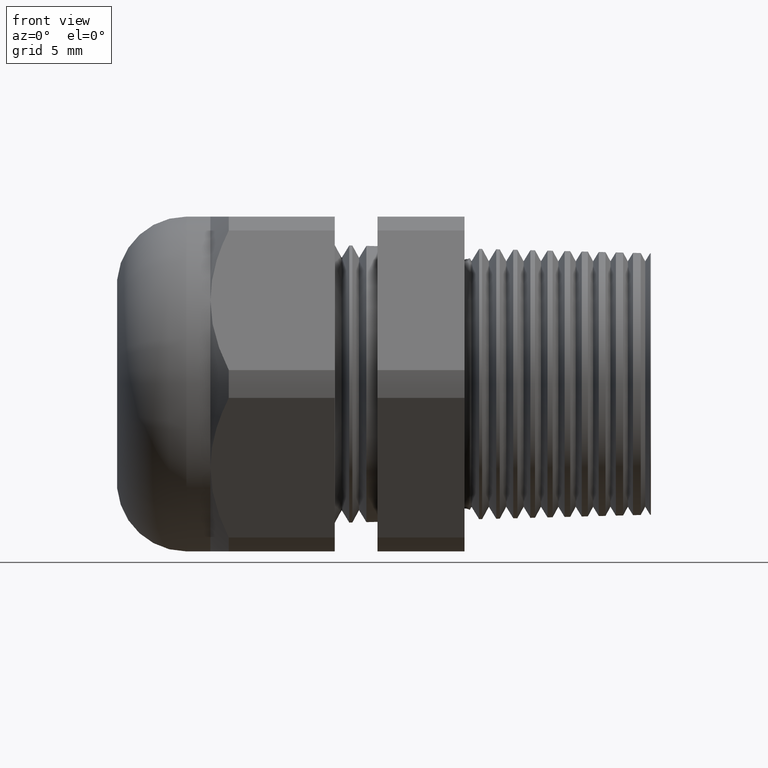
[diagram: clean part render]
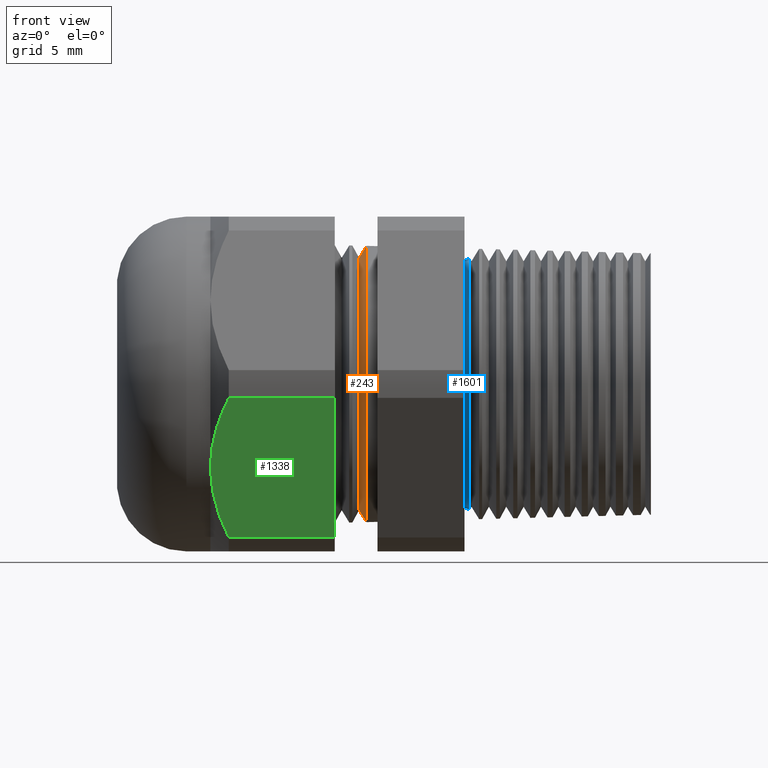
[diagram: same view with three faces highlighted in distinct colors, each labeled with its STEP entity id]
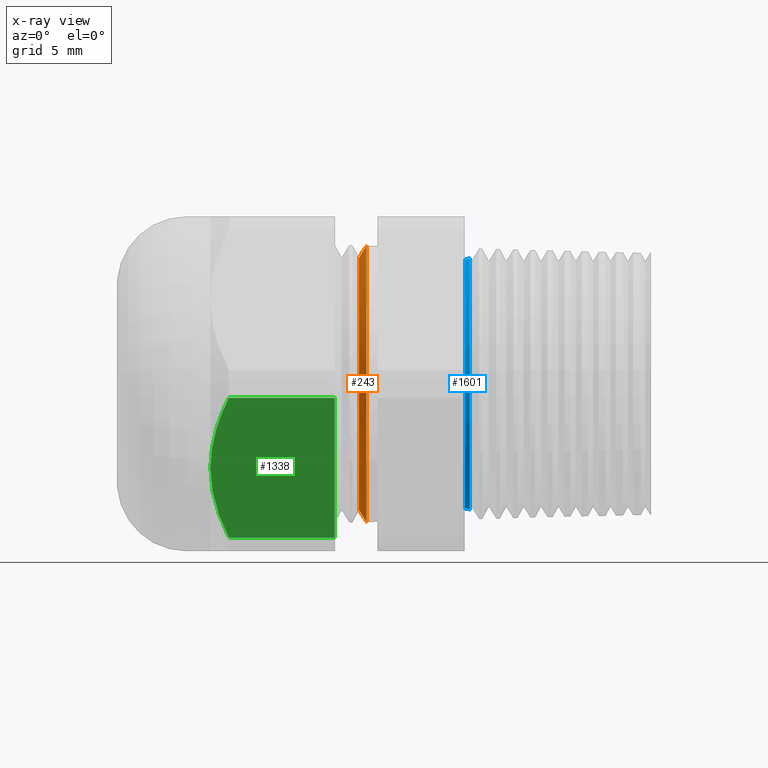
[diagram: x-ray of the same camera — body ghosted, the three highlighted faces saturated]
A machine part, front view with three faces highlighted in distinct colors.
The next image is the same camera in x-ray (body ghosted, the three faces saturated) — at least one of them is partly hidden behind the body in this view.
Their STEP definitions:

[orange] entity #243 — the highlighted conical surface has half-angle 58.5 deg.
#181 = EDGE_CURVE ( 'NONE', #512, #511, #761, .T. ) ;
#243 = ADVANCED_FACE ( 'NONE', ( #871 ), #870, .T. ) ;
#244 = EDGE_LOOP ( 'NONE', ( #245, #246, #247, #248 ) ) ;
#245 = ORIENTED_EDGE ( 'NONE', *, *, #514, .F. ) ;
#246 = ORIENTED_EDGE ( 'NONE', *, *, #181, .T. ) ;
#247 = ORIENTED_EDGE ( 'NONE', *, *, #518, .T. ) ;
#248 = ORIENTED_EDGE ( 'NONE', *, *, #249, .T. ) ;
#249 = EDGE_CURVE ( 'NONE', #1580, #1591, #864, .T. ) ;
#511 = VERTEX_POINT ( 'NONE', #2023 ) ;
#512 = VERTEX_POINT ( 'NONE', #2022 ) ;
#514 = EDGE_CURVE ( 'NONE', #512, #1591, #2021, .T. ) ;
#518 = EDGE_CURVE ( 'NONE', #511, #1580, #2015, .T. ) ;
#758 = DIRECTION ( 'NONE',  ( 0.0000000000000000000, 0.0000000000000000000, -1.000000000000000000 ) ) ;
#759 = DIRECTION ( 'NONE',  ( 1.000000000000000000, 0.0000000000000000000, 0.0000000000000000000 ) ) ;
#760 = AXIS2_PLACEMENT_3D ( 'NONE', #766, #759, #758 ) ;
#761 = CIRCLE ( 'NONE', #760, 0.3994091762748933600 ) ;
#766 = CARTESIAN_POINT ( 'NONE',  ( -0.6439846029526776800, 0.0000000000000000000, 0.0000000000000000000 ) ) ;
#861 = DIRECTION ( 'NONE',  ( 0.0000000000000000000, 0.0000000000000000000, -1.000000000000000000 ) ) ;
#862 = DIRECTION ( 'NONE',  ( -1.000000000000000000, 0.0000000000000000000, 0.0000000000000000000 ) ) ;
#863 = AXIS2_PLACEMENT_3D ( 'NONE', #869, #862, #861 ) ;
#864 = CIRCLE ( 'NONE', #863, 0.4373734588093055600 ) ;
#865 = DIRECTION ( 'NONE',  ( 0.0000000000000000000, 0.0000000000000000000, -1.000000000000000000 ) ) ;
#866 = DIRECTION ( 'NONE',  ( 1.000000000000000000, 0.0000000000000000000, 0.0000000000000000000 ) ) ;
#867 = CARTESIAN_POINT ( 'NONE',  ( -0.6439846029526776800, 0.0000000000000000000, 0.0000000000000000000 ) ) ;
#868 = AXIS2_PLACEMENT_3D ( 'NONE', #867, #866, #865 ) ;
#869 = CARTESIAN_POINT ( 'NONE',  ( -0.6207200606944226500, 0.0000000000000000000, 0.0000000000000000000 ) ) ;
#870 = CONICAL_SURFACE ( 'NONE', #868, 0.3994091762748933600, 1.021017612416699000 ) ;
#871 = FACE_OUTER_BOUND ( 'NONE', #244, .T. ) ;
#1580 = VERTEX_POINT ( 'NONE', #3372 ) ;
#1591 = VERTEX_POINT ( 'NONE', #3355 ) ;
#2009 = VECTOR ( 'NONE', #2069, 39.37007874015748900 ) ;
#2010 = CARTESIAN_POINT ( 'NONE',  ( -0.6439846029526776800, 0.0000000000000000000, -0.3994091762748933600 ) ) ;
#2015 = LINE ( 'NONE', #2010, #2009 ) ;
#2018 = DIRECTION ( 'NONE',  ( 0.5224985647159350300, 1.044183048100722500E-016, 0.8526401643541007300 ) ) ;
#2019 = VECTOR ( 'NONE', #2018, 39.37007874015748900 ) ;
#2020 = CARTESIAN_POINT ( 'NONE',  ( -0.6439846029526776800, 4.891351692751290900E-017, 0.3994091762748933600 ) ) ;
#2021 = LINE ( 'NONE', #2020, #2019 ) ;
#2022 = CARTESIAN_POINT ( 'NONE',  ( -0.6439846029526776800, 0.0000000000000000000, 0.3994091762748933600 ) ) ;
#2023 = CARTESIAN_POINT ( 'NONE',  ( -0.6439846029526776800, 5.130952772767395400E-017, -0.3994091762748933600 ) ) ;
#2069 = DIRECTION ( 'NONE',  ( 0.5224985647159350300, 0.0000000000000000000, -0.8526401643541007300 ) ) ;
#3355 = CARTESIAN_POINT ( 'NONE',  ( -0.6207200606944226500, 5.356280063628249500E-017, 0.4373734588093073400 ) ) ;
#3372 = CARTESIAN_POINT ( 'NONE',  ( -0.6207200606944226500, 0.0000000000000000000, -0.4373734588093073400 ) ) ;

[blue] entity #1601 — the highlighted toroidal blend (fillet) surface has major radius 10.7756 mm and minor (blend) radius 0.762 mm.
#1558 = VERTEX_POINT ( 'NONE', #3290 ) ;
#1596 = EDGE_LOOP ( 'NONE', ( #1600, #1689, #1684, #1693 ) ) ;
#1599 = EDGE_CURVE ( 'NONE', #1686, #1558, #3399, .T. ) ;
#1600 = ORIENTED_EDGE ( 'NONE', *, *, #1698, .T. ) ;
#1601 = ADVANCED_FACE ( 'NONE', ( #3400 ), #3393, .F. ) ;
#1683 = EDGE_CURVE ( 'NONE', #1700, #1558, #3554, .T. ) ;
#1684 = ORIENTED_EDGE ( 'NONE', *, *, #1599, .F. ) ;
#1686 = VERTEX_POINT ( 'NONE', #3549 ) ;
#1689 = ORIENTED_EDGE ( 'NONE', *, *, #1683, .T. ) ;
#1693 = ORIENTED_EDGE ( 'NONE', *, *, #1703, .T. ) ;
#1696 = VERTEX_POINT ( 'NONE', #3590 ) ;
#1698 = EDGE_CURVE ( 'NONE', #1696, #1700, #3589, .T. ) ;
#1700 = VERTEX_POINT ( 'NONE', #3584 ) ;
#1703 = EDGE_CURVE ( 'NONE', #1686, #1696, #3577, .T. ) ;
#3290 = CARTESIAN_POINT ( 'NONE',  ( -0.3089999999999999400, 0.0000000000000000000, -0.3942369676699906700 ) ) ;
#3390 = DIRECTION ( 'NONE',  ( 0.0000000000000000000, 0.0000000000000000000, -1.000000000000000000 ) ) ;
#3391 = DIRECTION ( 'NONE',  ( 1.000000000000000000, 0.0000000000000000000, 0.0000000000000000000 ) ) ;
#3392 = AXIS2_PLACEMENT_3D ( 'NONE', #3394, #3391, #3390 ) ;
#3393 = TOROIDAL_SURFACE ( 'NONE', #3392, 0.4242369676699906400, 0.02999999999999997500 ) ;
#3394 = CARTESIAN_POINT ( 'NONE',  ( -0.3089999999999999400, 0.0000000000000000000, 0.0000000000000000000 ) ) ;
#3395 = DIRECTION ( 'NONE',  ( 0.0000000000000000000, 0.0000000000000000000, -1.000000000000000000 ) ) ;
#3396 = DIRECTION ( 'NONE',  ( 0.0000000000000000000, -1.000000000000000000, 0.0000000000000000000 ) ) ;
#3397 = CARTESIAN_POINT ( 'NONE',  ( -0.3089999999999999400, 0.0000000000000000000, -0.4242369676699906400 ) ) ;
#3398 = AXIS2_PLACEMENT_3D ( 'NONE', #3397, #3396, #3395 ) ;
#3399 = CIRCLE ( 'NONE', #3398, 0.02999999999999995400 ) ;
#3400 = FACE_OUTER_BOUND ( 'NONE', #1596, .T. ) ;
#3549 = CARTESIAN_POINT ( 'NONE',  ( -0.2933789519871816700, 4.881745919260225500E-017, -0.3986248053446174700 ) ) ;
#3550 = DIRECTION ( 'NONE',  ( 0.0000000000000000000, 0.0000000000000000000, -1.000000000000000000 ) ) ;
#3551 = DIRECTION ( 'NONE',  ( 1.000000000000000000, 0.0000000000000000000, 0.0000000000000000000 ) ) ;
#3552 = CARTESIAN_POINT ( 'NONE',  ( -0.3089999999999999400, 0.0000000000000000000, 0.0000000000000000000 ) ) ;
#3553 = AXIS2_PLACEMENT_3D ( 'NONE', #3552, #3551, #3550 ) ;
#3554 = CIRCLE ( 'NONE', #3553, 0.3942369676699906700 ) ;
#3574 = DIRECTION ( 'NONE',  ( -1.000000000000000000, 0.0000000000000000000, 0.0000000000000000000 ) ) ;
#3575 = CARTESIAN_POINT ( 'NONE',  ( -0.2933789519871816700, 0.0000000000000000000, 0.0000000000000000000 ) ) ;
#3576 = AXIS2_PLACEMENT_3D ( 'NONE', #3575, #3574, #3636 ) ;
#3577 = CIRCLE ( 'NONE', #3576, 0.3986248053446175300 ) ;
#3584 = CARTESIAN_POINT ( 'NONE',  ( -0.3089999999999999400, 4.828010405626126100E-017, 0.3942369676699906700 ) ) ;
#3585 = DIRECTION ( 'NONE',  ( 0.0000000000000000000, 1.224646799147354900E-016, 1.000000000000000000 ) ) ;
#3586 = DIRECTION ( 'NONE',  ( 0.0000000000000000000, 1.000000000000000000, -1.224646799147353200E-016 ) ) ;
#3587 = CARTESIAN_POINT ( 'NONE',  ( -0.3089999999999999400, 5.195404445370331900E-017, 0.4242369676699906400 ) ) ;
#3588 = AXIS2_PLACEMENT_3D ( 'NONE', #3587, #3586, #3585 ) ;
#3589 = CIRCLE ( 'NONE', #3588, 0.02999999999999995400 ) ;
#3590 = CARTESIAN_POINT ( 'NONE',  ( -0.2933789519871816700, 0.0000000000000000000, 0.3986248053446174700 ) ) ;
#3636 = DIRECTION ( 'NONE',  ( 0.0000000000000000000, 0.0000000000000000000, 1.000000000000000000 ) ) ;

[green] entity #1338 — the highlighted planar face has unit normal (0, -0.866, -0.5).
#1167 = ORIENTED_EDGE ( 'NONE', *, *, #1168, .F. ) ;
#1168 = EDGE_CURVE ( 'NONE', #1333, #1313, #2513, .T. ) ;
#1172 = ORIENTED_EDGE ( 'NONE', *, *, #1318, .F. ) ;
#1313 = VERTEX_POINT ( 'NONE', #2844 ) ;
#1316 = VERTEX_POINT ( 'NONE', #2839 ) ;
#1318 = EDGE_CURVE ( 'NONE', #1313, #1316, #2838, .T. ) ;
#1324 = ORIENTED_EDGE ( 'NONE', *, *, #1326, .T. ) ;
#1325 = VERTEX_POINT ( 'NONE', #2824 ) ;
#1326 = EDGE_CURVE ( 'NONE', #1325, #1316, #2823, .T. ) ;
#1330 = EDGE_LOOP ( 'NONE', ( #1332, #1336, #1324, #1172, #1167 ) ) ;
#1331 = EDGE_CURVE ( 'NONE', #1334, #1325, #2909, .T. ) ;
#1332 = ORIENTED_EDGE ( 'NONE', *, *, #1335, .T. ) ;
#1333 = VERTEX_POINT ( 'NONE', #2908 ) ;
#1334 = VERTEX_POINT ( 'NONE', #2907 ) ;
#1335 = EDGE_CURVE ( 'NONE', #1333, #1334, #2896, .T. ) ;
#1336 = ORIENTED_EDGE ( 'NONE', *, *, #1331, .T. ) ;
#1338 = ADVANCED_FACE ( 'NONE', ( #2892 ), #2891, .T. ) ;
#2507 = DIRECTION ( 'NONE',  ( 0.0000000000000000000, 0.5000000000000002200, -0.8660254037844386000 ) ) ;
#2508 = VECTOR ( 'NONE', #2507, 39.37007874015747400 ) ;
#2509 = CARTESIAN_POINT ( 'NONE',  ( -0.7210236220472440200, -0.3489934640057524900, -0.4555255888325767100 ) ) ;
#2513 = LINE ( 'NONE', #2509, #2508 ) ;
#2823 = B_SPLINE_CURVE_WITH_KNOTS ( 'NONE', 3,
 ( #2876, #2875, #2874, #2873, #2872, #2871 ),
 .UNSPECIFIED., .F., .F.,
 ( 4, 2, 4 ),
 ( 0.006656663749350003200, 0.009982589261723356600, 0.01330851477409670900 ),
 .UNSPECIFIED. ) ;
#2824 = CARTESIAN_POINT ( 'NONE',  ( -1.114724409448818900, -0.4589934640057526900, -0.2650000000000002400 ) ) ;
#2835 = DIRECTION ( 'NONE',  ( -1.000000000000000000, 0.0000000000000000000, 0.0000000000000000000 ) ) ;
#2836 = VECTOR ( 'NONE', #2835, 39.37007874015748100 ) ;
#2837 = CARTESIAN_POINT ( 'NONE',  ( 0.2800000000000000300, -0.3313250556190258700, -0.4861281698472630400 ) ) ;
#2838 = LINE ( 'NONE', #2837, #2836 ) ;
#2839 = CARTESIAN_POINT ( 'NONE',  ( -1.056424409448819100, -0.3313250556190259800, -0.4861281698472632000 ) ) ;
#2844 = CARTESIAN_POINT ( 'NONE',  ( -0.7210236220472440200, -0.3313250556190258700, -0.4861281698472630400 ) ) ;
#2871 = CARTESIAN_POINT ( 'NONE',  ( -1.056424409448819100, -0.3313250556190259800, -0.4861281698472632000 ) ) ;
#2872 = CARTESIAN_POINT ( 'NONE',  ( -1.074076126443894700, -0.3516599709661860100, -0.4509070632983698300 ) ) ;
#2873 = CARTESIAN_POINT ( 'NONE',  ( -1.088853961512954700, -0.3726775389205834200, -0.4145035677498217200 ) ) ;
#2874 = CARTESIAN_POINT ( 'NONE',  ( -1.109147378537235400, -0.4152540171503035200, -0.3407589442485966000 ) ) ;
#2875 = CARTESIAN_POINT ( 'NONE',  ( -1.114724409448818700, -0.4369033769668389500, -0.3032611530950171100 ) ) ;
#2876 = CARTESIAN_POINT ( 'NONE',  ( -1.114724409448818900, -0.4589934640057526900, -0.2650000000000002400 ) ) ;
#2887 = DIRECTION ( 'NONE',  ( 0.0000000000000000000, 0.5000000000000001100, -0.8660254037844386000 ) ) ;
#2888 = DIRECTION ( 'NONE',  ( 0.0000000000000000000, -0.8660254037844386000, -0.5000000000000001100 ) ) ;
#2889 = CARTESIAN_POINT ( 'NONE',  ( 0.2800000000000000300, -0.3313250556190259800, -0.4861281698472630400 ) ) ;
#2890 = AXIS2_PLACEMENT_3D ( 'NONE', #2889, #2888, #2887 ) ;
#2891 = PLANE ( 'NONE',  #2890 ) ;
#2892 = FACE_OUTER_BOUND ( 'NONE', #1330, .T. ) ;
#2893 = DIRECTION ( 'NONE',  ( -1.000000000000000000, 0.0000000000000000000, 0.0000000000000000000 ) ) ;
#2894 = VECTOR ( 'NONE', #2893, 39.37007874015748100 ) ;
#2895 = CARTESIAN_POINT ( 'NONE',  ( 0.2800000000000000300, -0.5866618723924791300, -0.04387183015273716400 ) ) ;
#2896 = LINE ( 'NONE', #2895, #2894 ) ;
#2897 = CARTESIAN_POINT ( 'NONE',  ( -1.114724409448818900, -0.4589934640057526900, -0.2650000000000002400 ) ) ;
#2898 = CARTESIAN_POINT ( 'NONE',  ( -1.114724409448819100, -0.4645197752363700000, -0.2554281481701324300 ) ) ;
#2899 = CARTESIAN_POINT ( 'NONE',  ( -1.114374682963725800, -0.4700966316160714600, -0.2457687495739749000 ) ) ;
#2900 = CARTESIAN_POINT ( 'NONE',  ( -1.112985637093062200, -0.4811768528785424500, -0.2265772433882700700 ) ) ;
#2901 = CARTESIAN_POINT ( 'NONE',  ( -1.111950860452677300, -0.4866745645865461800, -0.2170549273846412700 ) ) ;
#2902 = CARTESIAN_POINT ( 'NONE',  ( -1.107887379404865100, -0.5030481801450604800, -0.1886949933336943000 ) ) ;
#2903 = CARTESIAN_POINT ( 'NONE',  ( -1.103899224939825600, -0.5138045271803674000, -0.1700644537647000000 ) ) ;
#2904 = CARTESIAN_POINT ( 'NONE',  ( -1.088626610748404400, -0.5456613404998792400, -0.1148868345280680100 ) ) ;
#2905 = CARTESIAN_POINT ( 'NONE',  ( -1.074054294306376000, -0.5663521078376413400, -0.07904937425147712200 ) ) ;
#2906 = CARTESIAN_POINT ( 'NONE',  ( -1.056424409448819100, -0.5866618723924791300, -0.04387183015273716400 ) ) ;
#2907 = CARTESIAN_POINT ( 'NONE',  ( -1.056424409448819100, -0.5866618723924791300, -0.04387183015273716400 ) ) ;
#2908 = CARTESIAN_POINT ( 'NONE',  ( -0.7210236220472440200, -0.5866618723924791300, -0.04387183015273716400 ) ) ;
#2909 = B_SPLINE_CURVE_WITH_KNOTS ( 'NONE', 3,
 ( #2906, #2905, #2904, #2903, #2902, #2901, #2900, #2899, #2898, #2897 ),
 .UNSPECIFIED., .F., .F.,
 ( 4, 2, 2, 2, 4 ),
 ( 2.483250567266958400E-007, 0.003328456037203365000, 0.004992559893276684100, 0.005824611821313343200, 0.006656663749350003200 ),
 .UNSPECIFIED. ) ;